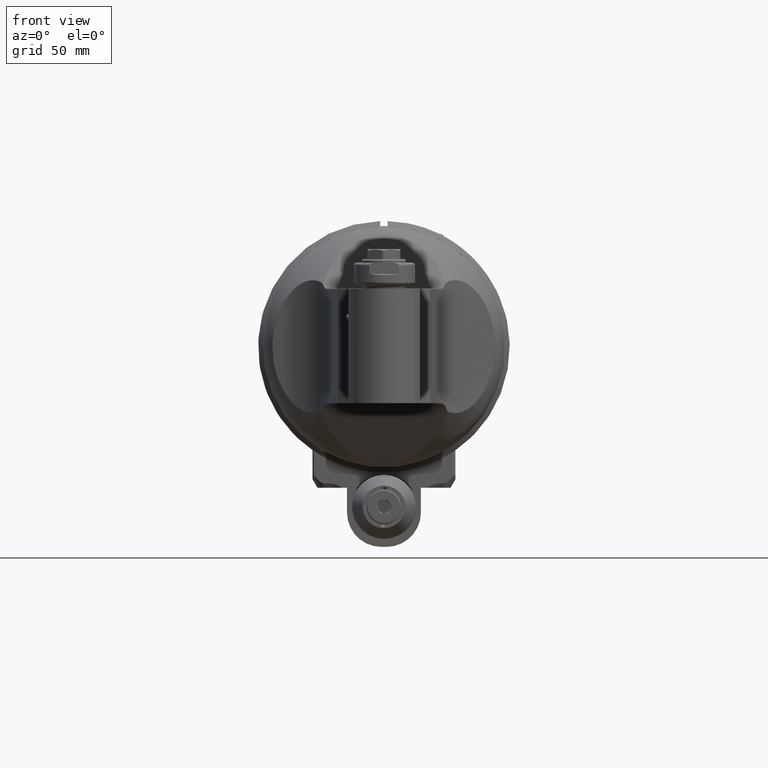
[diagram: clean part render]
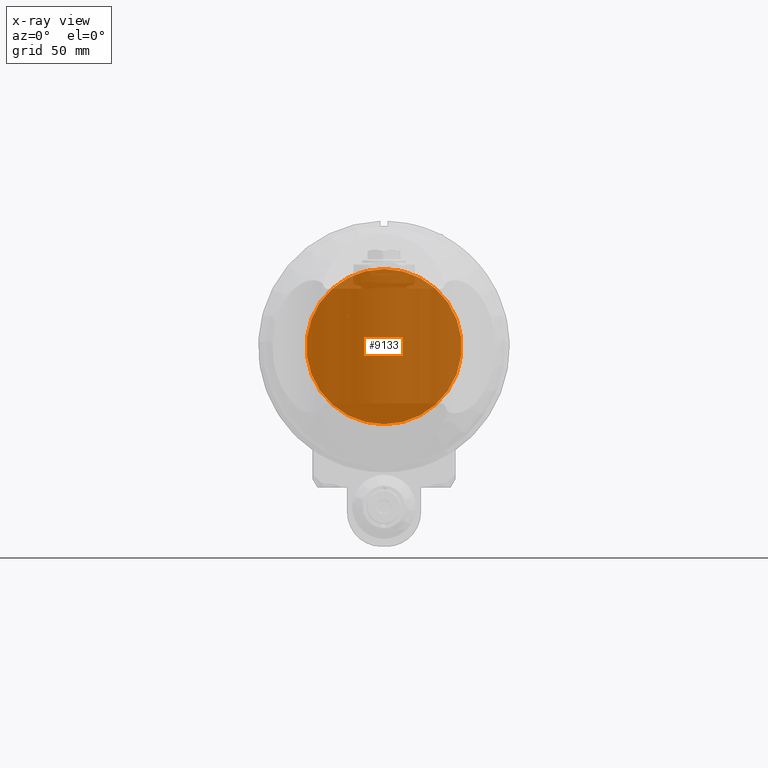
[diagram: x-ray — body ghosted, one internal face saturated and labeled with its STEP entity id]
A machine part, front view, then the same camera in x-ray: the body is ghosted and one INTERNAL B-rep face — a face not visible from any outside direction — is saturated and labeled: STEP entity #9133.
In plain terms, the highlighted planar face has unit normal (0, 1, -0).
Its self-contained STEP definition (entity closure, byte-faithful):
#499=PLANE('',#10086);
#1052=FACE_OUTER_BOUND('',#1660,.T.);
#1660=EDGE_LOOP('',(#8050));
#2146=CIRCLE('',#10085,31.5);
#4385=VERTEX_POINT('',#46182);
#5643=EDGE_CURVE('',#4385,#4385,#2146,.T.);
#8050=ORIENTED_EDGE('',*,*,#5643,.T.);
#9133=ADVANCED_FACE('',(#1052),#499,.T.);
#10085=AXIS2_PLACEMENT_3D('',#46184,#12356,#12357);
#10086=AXIS2_PLACEMENT_3D('',#46185,#12358,#12359);
#12356=DIRECTION('center_axis',(-1.,0.,0.));
#12357=DIRECTION('ref_axis',(0.,-1.,0.));
#12358=DIRECTION('center_axis',(-1.,0.,0.));
#12359=DIRECTION('ref_axis',(0.,1.,0.));
#46182=CARTESIAN_POINT('',(-15.,31.5,0.));
#46184=CARTESIAN_POINT('Origin',(-15.,0.,0.));
#46185=CARTESIAN_POINT('Origin',(-15.,30.75,0.));